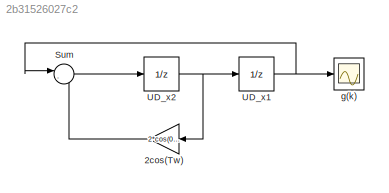
MODEL slx_2b31526027c2
KIND model
CONFIG AbsTol = auto
CONFIG EnableMultiTasking = off
CONFIG FixedStep = 0.25
CONFIG MaxStep = auto
CONFIG MinStep = auto
CONFIG RelTol = 1e-3
CONFIG SampleTimeConstraint = Unconstrained
CONFIG SolverName = FixedStepAuto
CONFIG StartTime = 0.0
CONFIG StopTime = 10.0
BLOCK [Gain] 2cos(Tw)
  Gain = 2*cos(0.25*0.7)
BLOCK [Sum] Sum
  Inputs = |-+
BLOCK [UnitDelay] UD_x1
  HasFrameUpgradeWarning = on
  SampleTime = -1
BLOCK [UnitDelay] UD_x2
  HasFrameUpgradeWarning = on
  InitialCondition = -8.5*sin(0.25*0.7)
  SampleTime = -1
BLOCK [Scope] g(k)
  Floating = off
  NumInputPorts = 1
  ScopeSpecificationString = Simulink.scopes.TimeScopeBlockCfg('CurrentConfiguration', extmgr.ConfigurationSet(extmgr.Configuration('Core','General UI',true,'FigureColor',[1 1 1]),extmgr.Configuration('Core','Source UI',true),extmgr.Configuration('Sources','WiredSimulink',true),extmgr.Configuration('Visuals','Time Domain',true,'SerializedDisplays',{struct('MinYLimReal','-10.62423','MaxYLimReal','10.62483','YLabelReal','g(k)',...<+2343ch>
LINE 2cos(Tw):1 -> Sum:2
LINE Sum:1 -> UD_x2:1
NET UD_x1:1 -> Sum:1, g(k):1
NET UD_x2:1 -> 2cos(Tw):1, UD_x1:1
note: NET lines group one-source signal fan-out (src -> all destinations, sorted); 1:1 wires keep LINE
